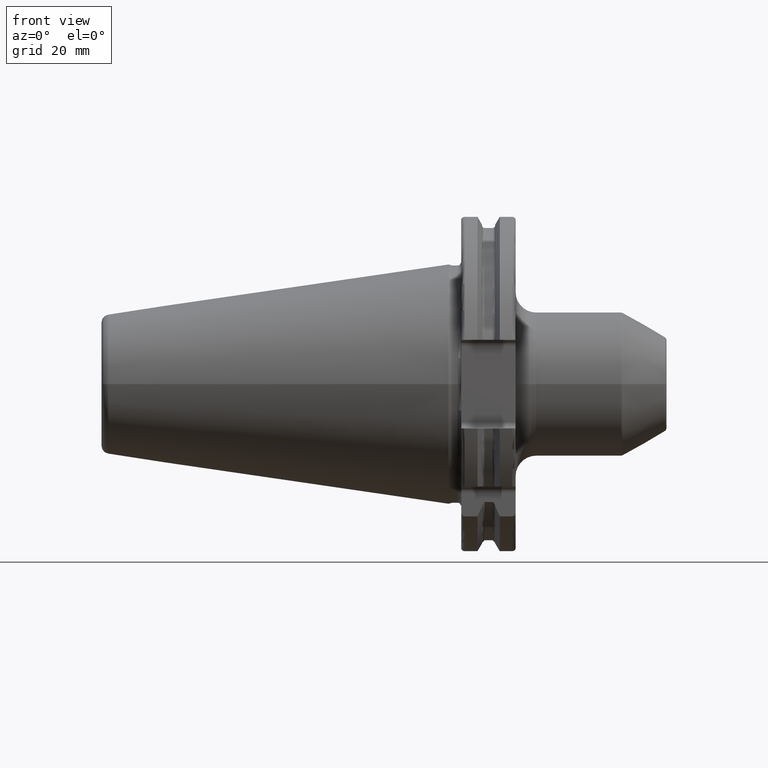
[diagram: clean part render]
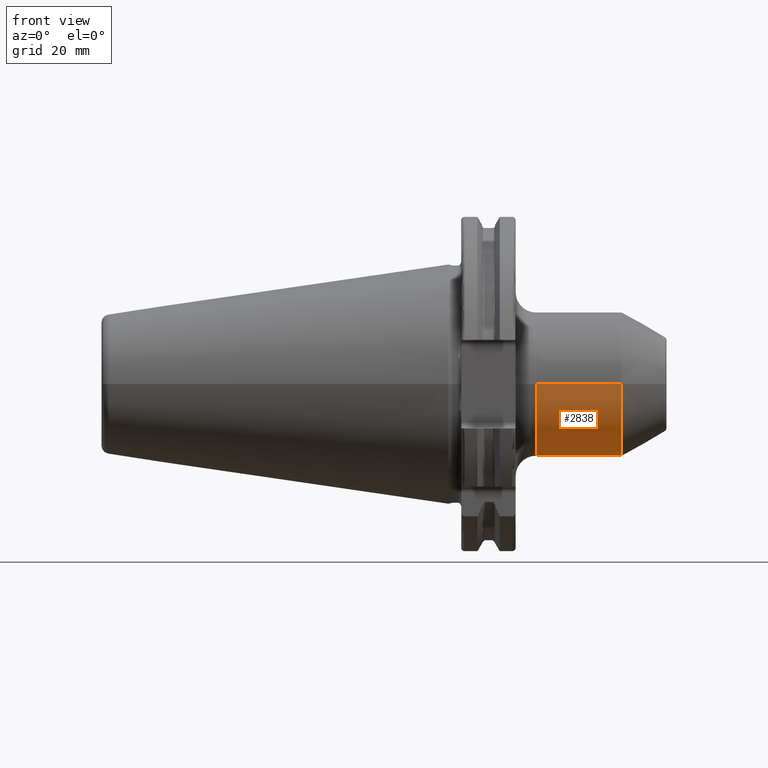
[diagram: same view with one face highlighted and labeled with its STEP entity id]
A machine part, front view. The second image highlights one B-rep face of the part: STEP entity #2838.
In plain terms, the highlighted cylindrical surface (partial cylindrical patch) has radius 21 mm, axis along (1, 0, 0).
Its self-contained STEP definition (entity closure, byte-faithful):
#1127=CARTESIAN_POINT('',(3.54E1,2.1E1,0.E0));
#1128=CARTESIAN_POINT('',(3.54E1,2.1E1,-2.737005982424E-1));
#1129=CARTESIAN_POINT('',(3.544330605242E1,2.098941824644E1,
-8.149674062385E-1));
#1130=CARTESIAN_POINT('',(3.564060859376E1,2.094236725022E1,-1.620463368016E0));
#1131=CARTESIAN_POINT('',(3.596427345939E1,2.086905587733E1,-2.378917143638E0));
#1132=CARTESIAN_POINT('',(3.639684948390E1,2.077863491211E1,-3.064385094576E0));
#1133=CARTESIAN_POINT('',(3.692969670114E1,2.067916278816E1,-3.671920056709E0));
#1134=CARTESIAN_POINT('',(3.756350369755E1,2.057815618512E1,-4.197443289571E0));
#1135=CARTESIAN_POINT('',(3.829015559192E1,2.048616732570E1,-4.622059793371E0));
#1136=CARTESIAN_POINT('',(3.909053843424E1,2.041412205943E1,-4.927845521227E0));
#1137=CARTESIAN_POINT('',(3.999037463095E1,2.037054671043E1,-5.103189528940E0));
#1138=CARTESIAN_POINT('',(4.093225683404E1,2.036870851566E1,-5.110431092025E0));
#1139=CARTESIAN_POINT('',(4.183790177676E1,2.040918888564E1,-4.948039347300E0));
#1140=CARTESIAN_POINT('',(4.264828879592E1,2.047946990120E1,-4.651445980366E0));
#1141=CARTESIAN_POINT('',(4.338786974252E1,2.057112060042E1,-4.231696668502E0));
#1142=CARTESIAN_POINT('',(4.403521648645E1,2.067301413011E1,-3.706452785996E0));
#1143=CARTESIAN_POINT('',(4.457993030654E1,2.077397771623E1,-3.096142449217E0));
#1144=CARTESIAN_POINT('',(4.502282477246E1,2.086620369579E1,-2.404509207838E0));
#1145=CARTESIAN_POINT('',(4.535372552252E1,2.094103090824E1,-1.638932285630E0));
#1146=CARTESIAN_POINT('',(4.555564209028E1,2.098915938902E1,
-8.246764048120E-1));
#1147=CARTESIAN_POINT('',(4.56E1,2.1E1,-2.770496894700E-1));
#1148=CARTESIAN_POINT('',(4.56E1,2.1E1,0.E0));
#1150=DIRECTION('',(-1.E0,0.E0,1.349997006293E-13));
#1151=VECTOR('',#1150,1.035E1);
#1152=CARTESIAN_POINT('',(3.54E1,2.1E1,0.E0));
#1153=LINE('',#1152,#1151);
#1154=CARTESIAN_POINT('',(2.505E1,0.E0,0.E0));
#1155=DIRECTION('',(1.E0,0.E0,0.E0));
#1156=DIRECTION('',(0.E0,-1.E0,0.E0));
#1157=AXIS2_PLACEMENT_3D('',#1154,#1155,#1156);
#1159=DIRECTION('',(-1.E0,0.E0,-1.371488046061E-13));
#1160=VECTOR('',#1159,2.468205080757E1);
#1161=CARTESIAN_POINT('',(4.973205080757E1,-2.1E1,1.992942856658E-12));
#1162=LINE('',#1161,#1160);
#1163=CARTESIAN_POINT('',(4.973205080757E1,0.E0,0.E0));
#1164=DIRECTION('',(-1.E0,0.E0,0.E0));
#1165=DIRECTION('',(0.E0,1.E0,0.E0));
#1166=AXIS2_PLACEMENT_3D('',#1163,#1164,#1165);
#1168=DIRECTION('',(-1.E0,0.E0,4.805217304776E-13));
#1169=VECTOR('',#1168,4.132050807569E0);
#1170=CARTESIAN_POINT('',(4.973205080757E1,2.1E1,-1.984250855888E-12));
#1171=LINE('',#1170,#1169);
#1618=CARTESIAN_POINT('',(4.56E1,2.1E1,0.E0));
#1620=VERTEX_POINT('',#1618);
#1622=CARTESIAN_POINT('',(3.54E1,2.1E1,0.E0));
#1624=VERTEX_POINT('',#1622);
#1631=CARTESIAN_POINT('',(2.505E1,-2.1E1,0.E0));
#1632=CARTESIAN_POINT('',(2.505E1,2.1E1,0.E0));
#1633=VERTEX_POINT('',#1631);
#1634=VERTEX_POINT('',#1632);
#1635=CARTESIAN_POINT('',(4.973205080757E1,2.1E1,0.E0));
#1636=CARTESIAN_POINT('',(4.973205080757E1,-2.1E1,0.E0));
#1637=VERTEX_POINT('',#1635);
#1638=VERTEX_POINT('',#1636);
#2825=CARTESIAN_POINT('',(1.68525E1,0.E0,0.E0));
#2826=DIRECTION('',(1.E0,0.E0,0.E0));
#2827=DIRECTION('',(0.E0,-1.E0,0.E0));
#2828=AXIS2_PLACEMENT_3D('',#2825,#2826,#2827);
#2829=CYLINDRICAL_SURFACE('',#2828,2.1E1);
#2830=ORIENTED_EDGE('',*,*,#2714,.F.);
#2831=ORIENTED_EDGE('',*,*,#2685,.T.);
#2832=ORIENTED_EDGE('',*,*,#2651,.F.);
#2833=ORIENTED_EDGE('',*,*,#2682,.F.);
#2834=ORIENTED_EDGE('',*,*,#2815,.F.);
#2835=ORIENTED_EDGE('',*,*,#2678,.T.);
#2836=EDGE_LOOP('',(#2830,#2831,#2832,#2833,#2834,#2835));
#2837=FACE_OUTER_BOUND('',#2836,.F.);
#2838=ADVANCED_FACE('',(#2837),#2829,.T.);
#1149=B_SPLINE_CURVE_WITH_KNOTS('',3,(#1127,#1128,#1129,#1130,#1131,#1132,#1133,
#1134,#1135,#1136,#1137,#1138,#1139,#1140,#1141,#1142,#1143,#1144,#1145,#1146,
#1147,#1148),.UNSPECIFIED.,.F.,.F.,(4,1,1,1,1,1,1,1,1,1,1,1,1,1,1,1,1,1,1,4),(
0.E0,5.263157894737E-2,1.052631578947E-1,1.578947368421E-1,2.105263157895E-1,
2.631578947368E-1,3.157894736842E-1,3.684210526316E-1,4.210526315789E-1,
4.736842105263E-1,5.263157894737E-1,5.789473684211E-1,6.315789473684E-1,
6.842105263158E-1,7.368421052632E-1,7.894736842105E-1,8.421052631579E-1,
8.947368421053E-1,9.473684210526E-1,1.E0),.UNSPECIFIED.);
#1158=CIRCLE('',#1157,2.1E1);
#1167=CIRCLE('',#1166,2.1E1);
#2651=EDGE_CURVE('',#1633,#1634,#1158,.T.);
#2678=EDGE_CURVE('',#1637,#1620,#1171,.T.);
#2682=EDGE_CURVE('',#1638,#1633,#1162,.T.);
#2685=EDGE_CURVE('',#1624,#1634,#1153,.T.);
#2714=EDGE_CURVE('',#1624,#1620,#1149,.T.);
#2815=EDGE_CURVE('',#1637,#1638,#1167,.T.);